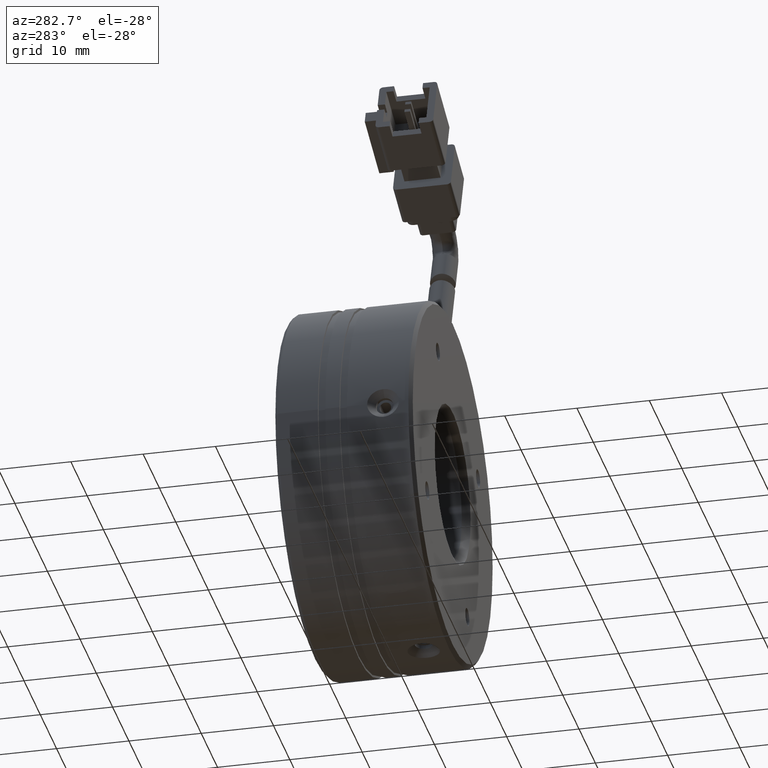
[diagram: clean part render]
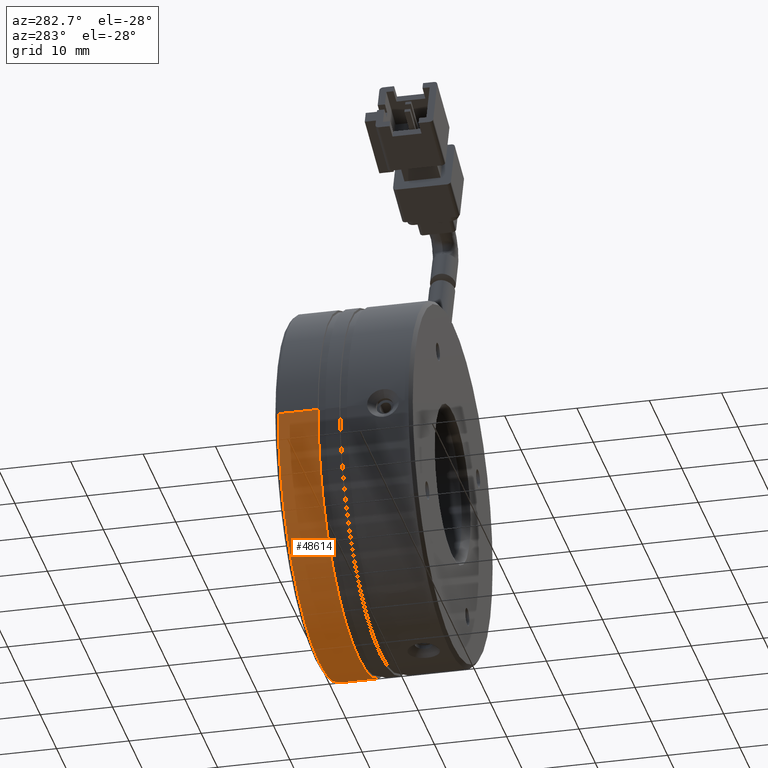
[diagram: same view with one face highlighted and labeled with its STEP entity id]
A machine part, auxiliary view. The second image highlights one B-rep face of the part: STEP entity #48614.
In plain terms, the highlighted cylindrical surface (partial cylindrical patch) has radius 25 mm, axis along (-0, 1, -0).
Its self-contained STEP definition (entity closure, byte-faithful):
#2066 = LINE ( 'NONE', #4829, #21871 ) ;
#2349 = AXIS2_PLACEMENT_3D ( 'NONE', #23876, #40691, #23834 ) ;
#3249 = EDGE_CURVE ( 'NONE', #46840, #46874, #13751, .T. ) ;
#4829 = CARTESIAN_POINT ( 'NONE',  ( -118.7263522884882400, 24.01734612509121200, 0.0000000000000000000 ) ) ;
#5002 = EDGE_CURVE ( 'NONE', #46601, #46747, #36012, .T. ) ;
#6913 = CARTESIAN_POINT ( 'NONE',  ( -93.72635228848822900, 24.01734612509121500, 0.0000000000000000000 ) ) ;
#7428 = CARTESIAN_POINT ( 'NONE',  ( -118.7263522884882400, 20.62753120665742700, 0.0000000000000000000 ) ) ;
#8802 = FACE_OUTER_BOUND ( 'NONE', #30640, .T. ) ;
#9402 = CARTESIAN_POINT ( 'NONE',  ( -68.72635228848822900, 15.12753120665742100, 3.061616997868383000E-015 ) ) ;
#10736 = CARTESIAN_POINT ( 'NONE',  ( -118.7263522884882400, 15.12753120665741400, 0.0000000000000000000 ) ) ;
#13751 = CIRCLE ( 'NONE', #2349, 25.00000000000000700 ) ;
#20781 = LINE ( 'NONE', #39906, #30123 ) ;
#21383 = DIRECTION ( 'NONE',  ( -1.000000000000000000, -1.387778780781445200E-016, 0.0000000000000000000 ) ) ;
#21871 = VECTOR ( 'NONE', #36528, 1000.000000000000000 ) ;
#22973 = CARTESIAN_POINT ( 'NONE',  ( -68.72635228848822900, 20.62753120665743400, 3.061616997868383000E-015 ) ) ;
#23572 = CYLINDRICAL_SURFACE ( 'NONE', #41648, 25.00000000000000700 ) ;
#23834 = DIRECTION ( 'NONE',  ( 1.000000000000000000, 1.387778780781445200E-016, 0.0000000000000000000 ) ) ;
#23876 = CARTESIAN_POINT ( 'NONE',  ( -93.72635228848822900, 20.62753120665743000, 0.0000000000000000000 ) ) ;
#30123 = VECTOR ( 'NONE', #35994, 1000.000000000000000 ) ;
#30640 = EDGE_LOOP ( 'NONE', ( #36970, #38541, #40490, #42326 ) ) ;
#32498 = EDGE_CURVE ( 'NONE', #46747, #46874, #2066, .T. ) ;
#34568 = DIRECTION ( 'NONE',  ( -1.224646799147351700E-016, 1.000000000000000000, -0.0000000000000000000 ) ) ;
#35994 = DIRECTION ( 'NONE',  ( -1.224646799147351700E-016, 1.000000000000000000, -0.0000000000000000000 ) ) ;
#36012 = CIRCLE ( 'NONE', #47905, 25.00000000000000700 ) ;
#36528 = DIRECTION ( 'NONE',  ( -1.224646799147351700E-016, 1.000000000000000000, -0.0000000000000000000 ) ) ;
#36970 = ORIENTED_EDGE ( 'NONE', *, *, #47016, .F. ) ;
#38541 = ORIENTED_EDGE ( 'NONE', *, *, #5002, .T. ) ;
#39906 = CARTESIAN_POINT ( 'NONE',  ( -68.72635228848822900, 24.01734612509121900, 3.061616997868383400E-015 ) ) ;
#40490 = ORIENTED_EDGE ( 'NONE', *, *, #32498, .T. ) ;
#40691 = DIRECTION ( 'NONE',  ( -1.224646799147351500E-016, 1.000000000000000000, -0.0000000000000000000 ) ) ;
#41648 = AXIS2_PLACEMENT_3D ( 'NONE', #6913, #34568, #50125 ) ;
#42326 = ORIENTED_EDGE ( 'NONE', *, *, #3249, .F. ) ;
#45618 = DIRECTION ( 'NONE',  ( -1.224646799147351700E-016, 1.000000000000000000, -0.0000000000000000000 ) ) ;
#45730 = CARTESIAN_POINT ( 'NONE',  ( -93.72635228848822900, 15.12753120665741800, 0.0000000000000000000 ) ) ;
#46601 = VERTEX_POINT ( 'NONE', #9402 ) ;
#46747 = VERTEX_POINT ( 'NONE', #10736 ) ;
#46840 = VERTEX_POINT ( 'NONE', #22973 ) ;
#46874 = VERTEX_POINT ( 'NONE', #7428 ) ;
#47016 = EDGE_CURVE ( 'NONE', #46601, #46840, #20781, .T. ) ;
#47905 = AXIS2_PLACEMENT_3D ( 'NONE', #45730, #45618, #21383 ) ;
#48614 = ADVANCED_FACE ( 'NONE', ( #8802 ), #23572, .T. ) ;
#50125 = DIRECTION ( 'NONE',  ( -1.000000000000000000, -1.387778780781445200E-016, 0.0000000000000000000 ) ) ;